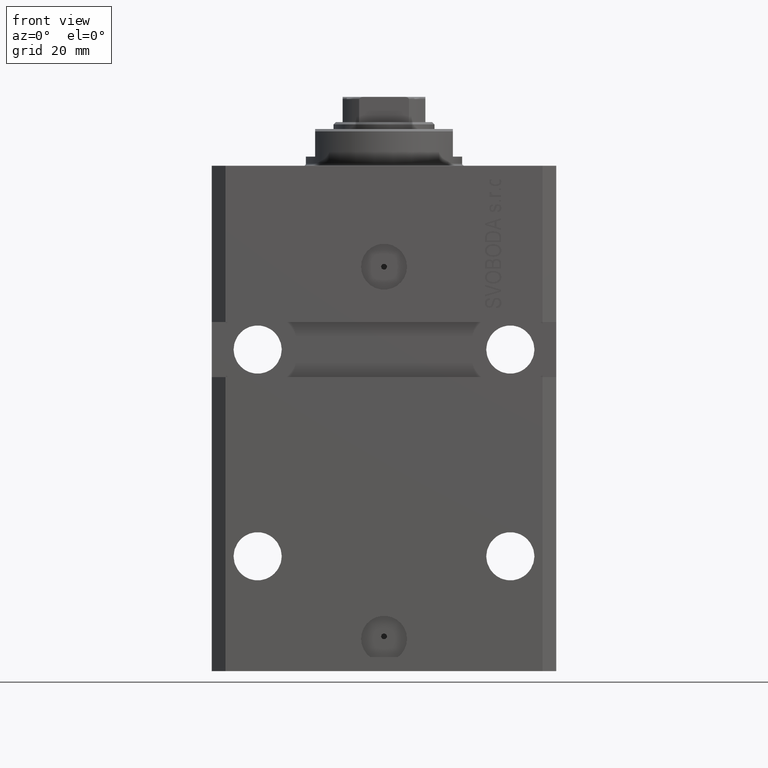
[diagram: clean part render]
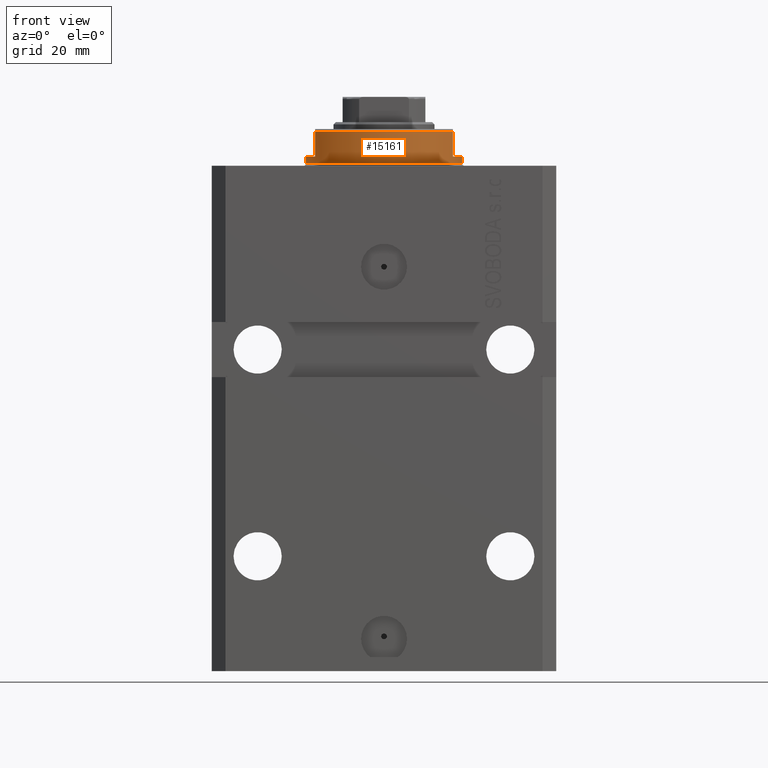
[diagram: same view with one face highlighted and labeled with its STEP entity id]
A machine part, front view. The second image highlights one B-rep face of the part: STEP entity #15161.
In plain terms, the highlighted cylindrical surface (partial cylindrical patch) has radius 17 mm, axis along (0, 0, -1).
Its self-contained STEP definition (entity closure, byte-faithful):
#408 = CARTESIAN_POINT ( 'NONE',  ( -17.00000000000000000, 2.081899558550500280E-15, -0.5000000000000004441 ) ) ;
#2053 = EDGE_CURVE ( 'NONE', #15783, #14089, #27168, .T. ) ;
#2415 = DIRECTION ( 'NONE',  ( -1.000000000000000000, 0.000000000000000000, 0.000000000000000000 ) ) ;
#3091 = VERTEX_POINT ( 'NONE', #36204 ) ;
#3111 = DIRECTION ( 'NONE',  ( 0.000000000000000000, 0.000000000000000000, -1.000000000000000000 ) ) ;
#4068 = ORIENTED_EDGE ( 'NONE', *, *, #16950, .F. ) ;
#4320 = DIRECTION ( 'NONE',  ( -1.000000000000000000, 0.000000000000000000, 0.000000000000000000 ) ) ;
#4551 = DIRECTION ( 'NONE',  ( 0.000000000000000000, 0.000000000000000000, 1.000000000000000000 ) ) ;
#4796 = EDGE_CURVE ( 'NONE', #17420, #43672, #28965, .T. ) ;
#5946 = CIRCLE ( 'NONE', #24304, 17.00000000000000000 ) ;
#6322 = CYLINDRICAL_SURFACE ( 'NONE', #36567, 17.00000000000000000 ) ;
#6494 = DIRECTION ( 'NONE',  ( 0.000000000000000000, 0.000000000000000000, -1.000000000000000000 ) ) ;
#6775 = AXIS2_PLACEMENT_3D ( 'NONE', #7915, #4551, #4320 ) ;
#7915 = CARTESIAN_POINT ( 'NONE',  ( 0.000000000000000000, 0.000000000000000000, -7.500000000000007105 ) ) ;
#9197 = FACE_OUTER_BOUND ( 'NONE', #15843, .T. ) ;
#9316 = CARTESIAN_POINT ( 'NONE',  ( 17.00000000000000000, 0.000000000000000000, -0.5000000000000004441 ) ) ;
#11110 = CARTESIAN_POINT ( 'NONE',  ( 15.00000000000000000, -8.000000000000001776, -8.000000000000000000 ) ) ;
#13023 = VERTEX_POINT ( 'NONE', #46085 ) ;
#13117 = CARTESIAN_POINT ( 'NONE',  ( -15.00000000000000000, -8.000000000000001776, -7.500000000000007105 ) ) ;
#13193 = ORIENTED_EDGE ( 'NONE', *, *, #28614, .F. ) ;
#14089 = VERTEX_POINT ( 'NONE', #408 ) ;
#14367 = EDGE_CURVE ( 'NONE', #42098, #13023, #5946, .T. ) ;
#15145 = DIRECTION ( 'NONE',  ( 0.000000000000000000, 0.000000000000000000, -1.000000000000000000 ) ) ;
#15161 = ADVANCED_FACE ( 'NONE', ( #9197 ), #6322, .T. ) ;
#15661 = CARTESIAN_POINT ( 'NONE',  ( 17.00000000000000000, 0.000000000000000000, -2.000000000000000000 ) ) ;
#15684 = EDGE_CURVE ( 'NONE', #43672, #39847, #35057, .T. ) ;
#15783 = VERTEX_POINT ( 'NONE', #9316 ) ;
#15843 = EDGE_LOOP ( 'NONE', ( #4068, #13193, #39982, #16123, #17978, #34218, #46562, #17309 ) ) ;
#16123 = ORIENTED_EDGE ( 'NONE', *, *, #15684, .T. ) ;
#16950 = EDGE_CURVE ( 'NONE', #3091, #14089, #27457, .T. ) ;
#17309 = ORIENTED_EDGE ( 'NONE', *, *, #2053, .T. ) ;
#17420 = VERTEX_POINT ( 'NONE', #25710 ) ;
#17978 = ORIENTED_EDGE ( 'NONE', *, *, #39871, .F. ) ;
#18448 = CARTESIAN_POINT ( 'NONE',  ( 17.00000000000000000, 0.000000000000000000, -8.000000000000000000 ) ) ;
#18782 = LINE ( 'NONE', #11110, #40018 ) ;
#20618 = VECTOR ( 'NONE', #23175, 1000.000000000000000 ) ;
#20893 = DIRECTION ( 'NONE',  ( 1.000000000000000000, 0.000000000000000000, 0.000000000000000000 ) ) ;
#23175 = DIRECTION ( 'NONE',  ( -0.000000000000000000, -0.000000000000000000, 1.000000000000000000 ) ) ;
#23873 = CARTESIAN_POINT ( 'NONE',  ( -17.00000000000000000, 2.081899558550500280E-15, -8.000000000000000000 ) ) ;
#24045 = CARTESIAN_POINT ( 'NONE',  ( 0.000000000000000000, 0.000000000000000000, -8.000000000000000000 ) ) ;
#24216 = CARTESIAN_POINT ( 'NONE',  ( 0.000000000000000000, 0.000000000000000000, -2.000000000000000000 ) ) ;
#24304 = AXIS2_PLACEMENT_3D ( 'NONE', #34508, #15145, #37404 ) ;
#25454 = CIRCLE ( 'NONE', #36899, 17.00000000000000000 ) ;
#25710 = CARTESIAN_POINT ( 'NONE',  ( -14.99999999999999645, -8.000000000000003553, -2.000000000000000000 ) ) ;
#27168 = CIRCLE ( 'NONE', #35594, 17.00000000000000000 ) ;
#27457 = LINE ( 'NONE', #23873, #20618 ) ;
#28614 = EDGE_CURVE ( 'NONE', #17420, #3091, #25454, .T. ) ;
#28684 = EDGE_CURVE ( 'NONE', #42098, #15783, #44037, .T. ) ;
#28965 = LINE ( 'NONE', #35919, #42540 ) ;
#33374 = CARTESIAN_POINT ( 'NONE',  ( 15.00000000000000000, -8.000000000000001776, -7.500000000000007105 ) ) ;
#34218 = ORIENTED_EDGE ( 'NONE', *, *, #14367, .F. ) ;
#34508 = CARTESIAN_POINT ( 'NONE',  ( 0.000000000000000000, 0.000000000000000000, -2.000000000000000000 ) ) ;
#35057 = CIRCLE ( 'NONE', #6775, 17.00000000000000000 ) ;
#35287 = DIRECTION ( 'NONE',  ( -0.000000000000000000, -0.000000000000000000, 1.000000000000000000 ) ) ;
#35594 = AXIS2_PLACEMENT_3D ( 'NONE', #39076, #36193, #20893 ) ;
#35919 = CARTESIAN_POINT ( 'NONE',  ( -15.00000000000000000, -8.000000000000001776, -8.000000000000000000 ) ) ;
#36193 = DIRECTION ( 'NONE',  ( -0.000000000000000000, -0.000000000000000000, -1.000000000000000000 ) ) ;
#36204 = CARTESIAN_POINT ( 'NONE',  ( -17.00000000000000000, 2.081899558550500280E-15, -2.000000000000000000 ) ) ;
#36396 = DIRECTION ( 'NONE',  ( -0.000000000000000000, -0.000000000000000000, 1.000000000000000000 ) ) ;
#36493 = DIRECTION ( 'NONE',  ( 0.000000000000000000, 0.000000000000000000, -1.000000000000000000 ) ) ;
#36567 = AXIS2_PLACEMENT_3D ( 'NONE', #24045, #35287, #38396 ) ;
#36899 = AXIS2_PLACEMENT_3D ( 'NONE', #24216, #6494, #2415 ) ;
#37404 = DIRECTION ( 'NONE',  ( -1.000000000000000000, 0.000000000000000000, 0.000000000000000000 ) ) ;
#38396 = DIRECTION ( 'NONE',  ( 1.000000000000000000, 0.000000000000000000, 0.000000000000000000 ) ) ;
#39076 = CARTESIAN_POINT ( 'NONE',  ( 0.000000000000000000, 0.000000000000000000, -0.5000000000000004441 ) ) ;
#39847 = VERTEX_POINT ( 'NONE', #33374 ) ;
#39871 = EDGE_CURVE ( 'NONE', #13023, #39847, #18782, .T. ) ;
#39982 = ORIENTED_EDGE ( 'NONE', *, *, #4796, .T. ) ;
#40018 = VECTOR ( 'NONE', #36493, 1000.000000000000000 ) ;
#42098 = VERTEX_POINT ( 'NONE', #15661 ) ;
#42237 = VECTOR ( 'NONE', #36396, 1000.000000000000000 ) ;
#42540 = VECTOR ( 'NONE', #3111, 1000.000000000000000 ) ;
#43672 = VERTEX_POINT ( 'NONE', #13117 ) ;
#44037 = LINE ( 'NONE', #18448, #42237 ) ;
#46085 = CARTESIAN_POINT ( 'NONE',  ( 14.99999999999999645, -8.000000000000003553, -2.000000000000000000 ) ) ;
#46562 = ORIENTED_EDGE ( 'NONE', *, *, #28684, .T. ) ;